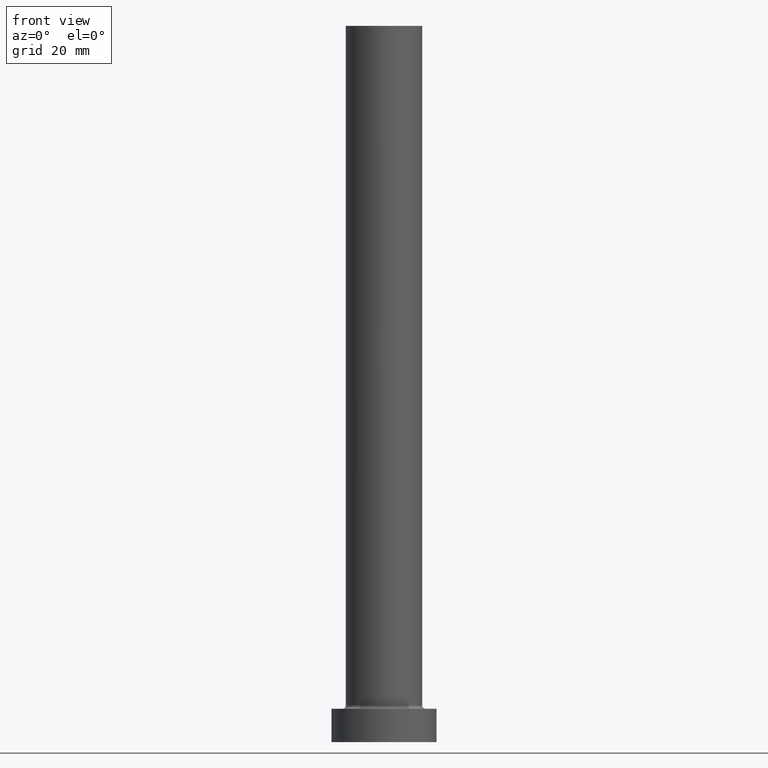
[diagram: clean part render]
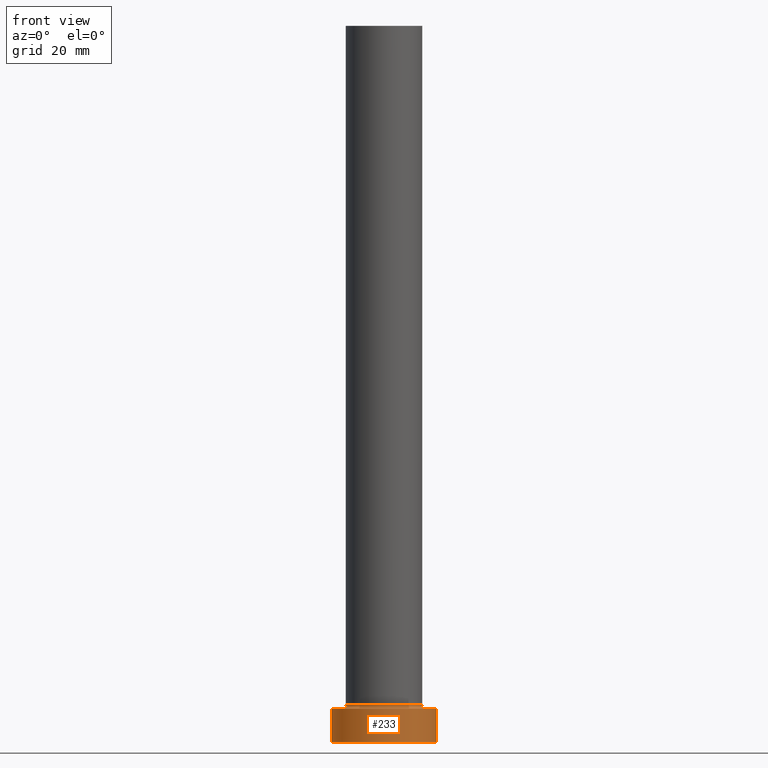
[diagram: same view with one face highlighted and labeled with its STEP entity id]
A machine part, front view. The second image highlights one B-rep face of the part: STEP entity #233.
In plain terms, the highlighted cylindrical surface (partial cylindrical patch) has radius 11 mm, axis along (-0, -0, -1).
Its self-contained STEP definition (entity closure, byte-faithful):
#3 = AXIS2_PLACEMENT_3D ( 'NONE', #173, #224, #329 ) ;
#9 = CARTESIAN_POINT ( 'NONE',  ( 0.000000000000000000, 0.000000000000000000, 0.000000000000000000 ) ) ;
#15 = FACE_OUTER_BOUND ( 'NONE', #168, .T. ) ;
#43 = CARTESIAN_POINT ( 'NONE',  ( 11.00000000000000000, 1.347111479062088405E-15, 0.000000000000000000 ) ) ;
#47 = VERTEX_POINT ( 'NONE', #49 ) ;
#49 = CARTESIAN_POINT ( 'NONE',  ( -11.00000000000000000, 0.000000000000000000, 0.000000000000000000 ) ) ;
#74 = ORIENTED_EDGE ( 'NONE', *, *, #380, .T. ) ;
#81 = ORIENTED_EDGE ( 'NONE', *, *, #250, .F. ) ;
#83 = LINE ( 'NONE', #234, #86 ) ;
#86 = VECTOR ( 'NONE', #373, 1000.000000000000000 ) ;
#88 = EDGE_CURVE ( 'NONE', #335, #47, #83, .T. ) ;
#105 = CARTESIAN_POINT ( 'NONE',  ( -11.00000000000000000, 0.000000000000000000, 7.000000000000000000 ) ) ;
#107 = CARTESIAN_POINT ( 'NONE',  ( 11.00000000000000000, 1.347111479062088405E-15, 7.000000000000000000 ) ) ;
#111 = AXIS2_PLACEMENT_3D ( 'NONE', #9, #332, #150 ) ;
#150 = DIRECTION ( 'NONE',  ( 1.000000000000000000, 0.000000000000000000, 0.000000000000000000 ) ) ;
#158 = CYLINDRICAL_SURFACE ( 'NONE', #3, 11.00000000000000000 ) ;
#162 = EDGE_CURVE ( 'NONE', #361, #408, #385, .T. ) ;
#168 = EDGE_LOOP ( 'NONE', ( #261, #81, #371, #74 ) ) ;
#173 = CARTESIAN_POINT ( 'NONE',  ( 0.000000000000000000, 0.000000000000000000, 7.000000000000000000 ) ) ;
#187 = CIRCLE ( 'NONE', #390, 11.00000000000000000 ) ;
#224 = DIRECTION ( 'NONE',  ( -0.000000000000000000, -0.000000000000000000, -1.000000000000000000 ) ) ;
#233 = ADVANCED_FACE ( 'NONE', ( #15 ), #158, .T. ) ;
#234 = CARTESIAN_POINT ( 'NONE',  ( -11.00000000000000000, 0.000000000000000000, 7.000000000000000000 ) ) ;
#235 = DIRECTION ( 'NONE',  ( -0.000000000000000000, -0.000000000000000000, -1.000000000000000000 ) ) ;
#250 = EDGE_CURVE ( 'NONE', #335, #361, #187, .T. ) ;
#261 = ORIENTED_EDGE ( 'NONE', *, *, #162, .F. ) ;
#287 = VECTOR ( 'NONE', #235, 1000.000000000000000 ) ;
#322 = CARTESIAN_POINT ( 'NONE',  ( 0.000000000000000000, 0.000000000000000000, 7.000000000000000000 ) ) ;
#329 = DIRECTION ( 'NONE',  ( -1.000000000000000000, 0.000000000000000000, 0.000000000000000000 ) ) ;
#332 = DIRECTION ( 'NONE',  ( 0.000000000000000000, 0.000000000000000000, 1.000000000000000000 ) ) ;
#335 = VERTEX_POINT ( 'NONE', #105 ) ;
#361 = VERTEX_POINT ( 'NONE', #107 ) ;
#371 = ORIENTED_EDGE ( 'NONE', *, *, #88, .T. ) ;
#373 = DIRECTION ( 'NONE',  ( -0.000000000000000000, -0.000000000000000000, -1.000000000000000000 ) ) ;
#380 = EDGE_CURVE ( 'NONE', #47, #408, #445, .T. ) ;
#385 = LINE ( 'NONE', #421, #287 ) ;
#390 = AXIS2_PLACEMENT_3D ( 'NONE', #322, #461, #400 ) ;
#400 = DIRECTION ( 'NONE',  ( 1.000000000000000000, 0.000000000000000000, 0.000000000000000000 ) ) ;
#408 = VERTEX_POINT ( 'NONE', #43 ) ;
#421 = CARTESIAN_POINT ( 'NONE',  ( 11.00000000000000000, 1.347111479062088405E-15, 7.000000000000000000 ) ) ;
#445 = CIRCLE ( 'NONE', #111, 11.00000000000000000 ) ;
#461 = DIRECTION ( 'NONE',  ( 0.000000000000000000, 0.000000000000000000, 1.000000000000000000 ) ) ;